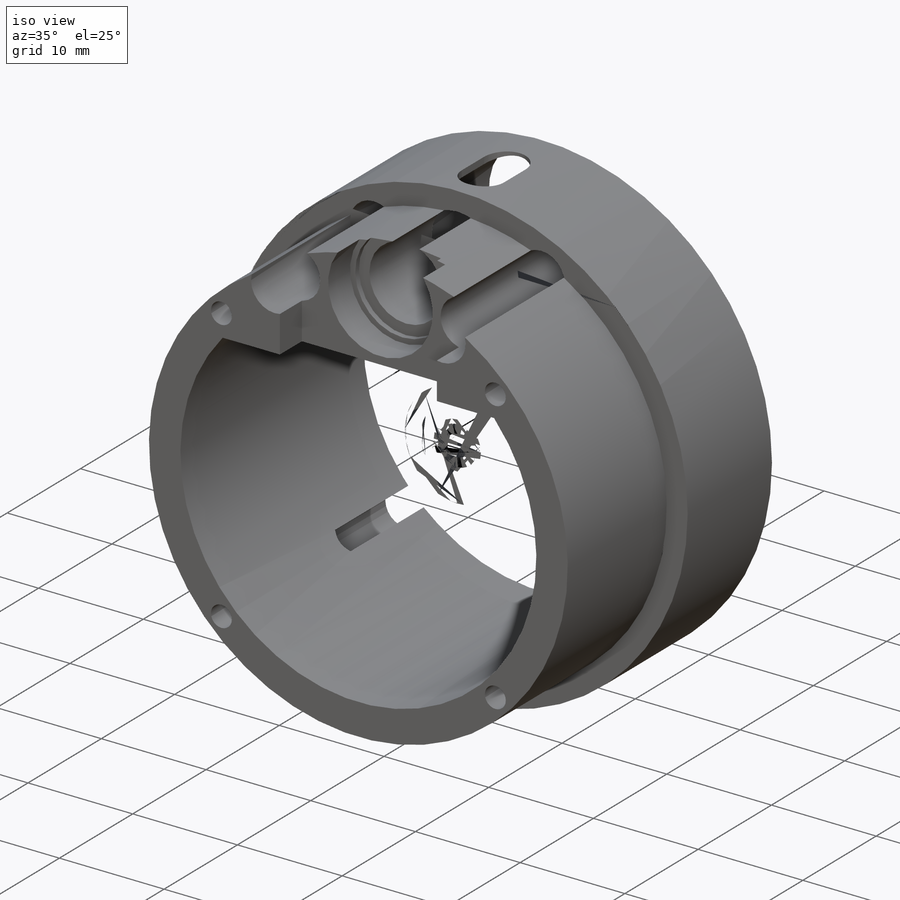
[diagram: iso view]
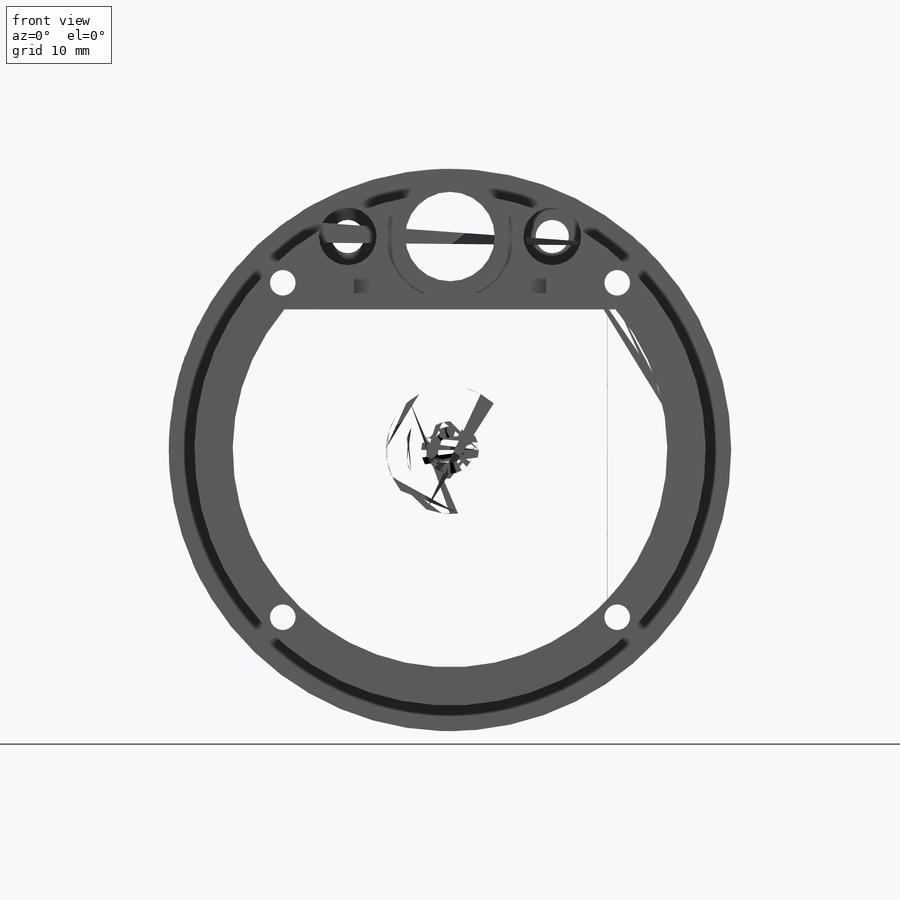
[diagram: front view]
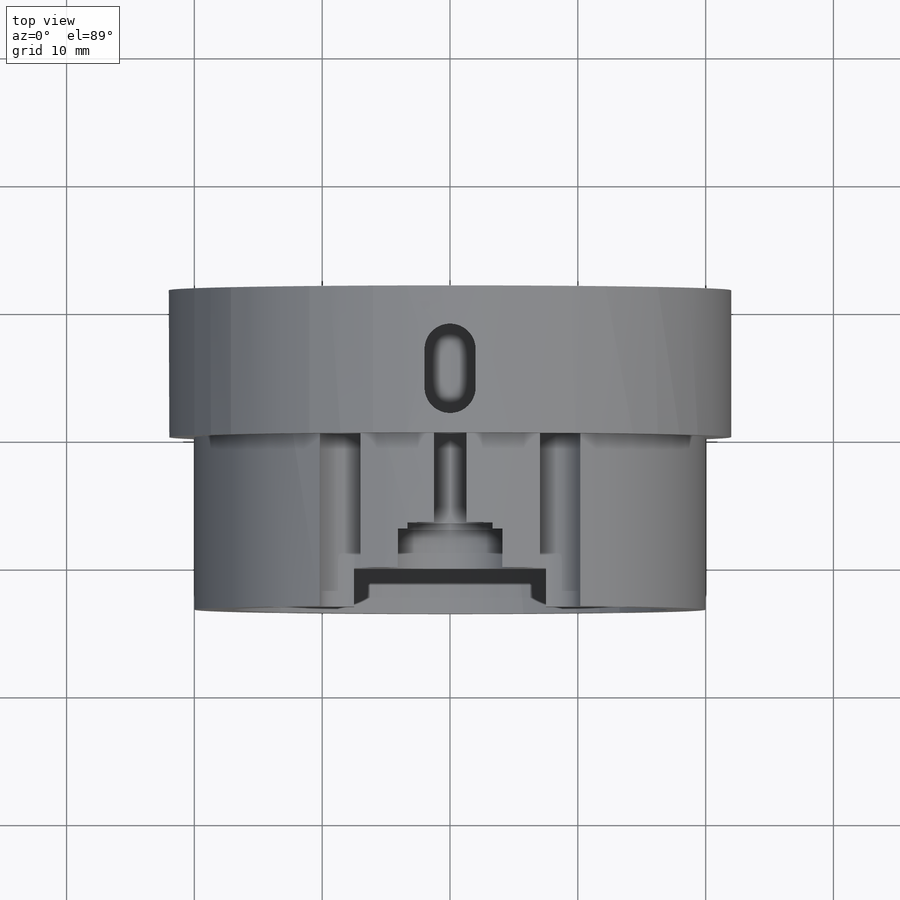
[diagram: top view]
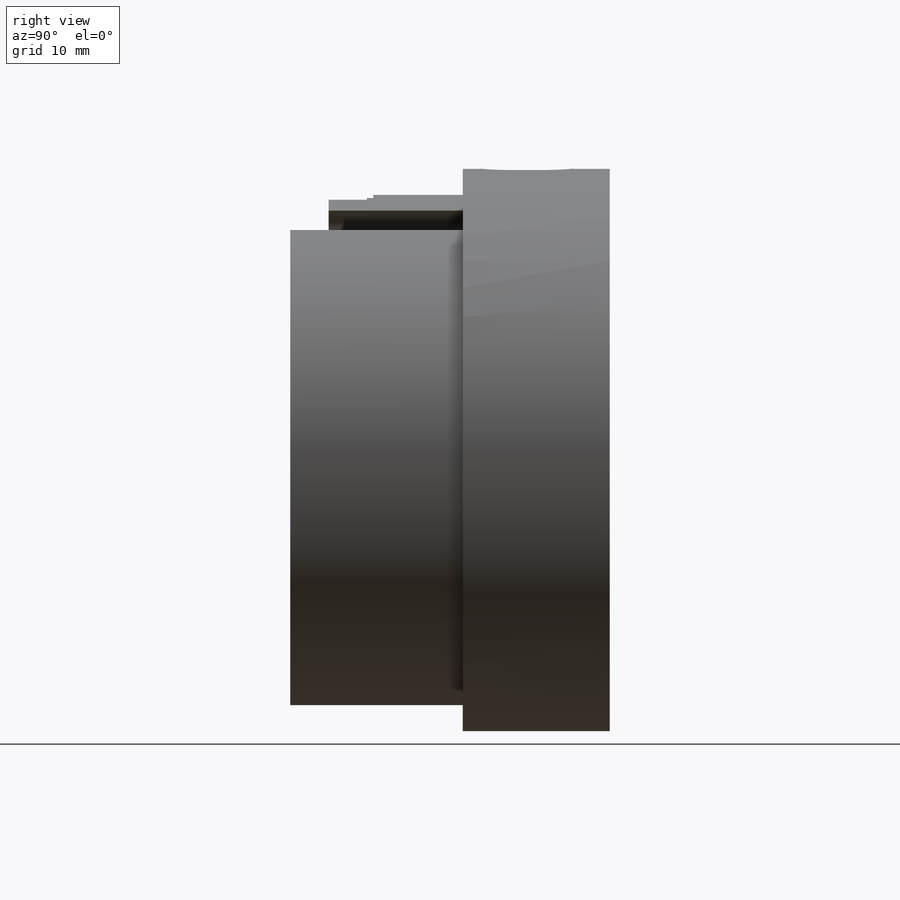
[diagram: right view]
SOLIDWORKS PART (.sldprt)
format: sldprt  version: not decoded by parser v0  size: 666,112 bytes
history: native  units: mm
features: sketch x14, cut_extrude x9, plane x4, extrude x3, material x1, hole x1 (+9 scaffold rows collapsed)
feature tree (41):
  scaffold x9  (default folders/planes/origin — collapsed)
  material  "PMMA"
  plane  "Ebene vorne"
  plane  "Ebene oben"
  plane  "Ebene rechts"
  sketch  "Skizze1"  dims[c1.D1=40.0mm c1.D2=~14.656939mm c1.D3=40.0mm c1.D4=10.0mm c1.D8=~5.68012mm c1.D9=7.0mm c2.D2=3.0mm c2.D3=2.0mm c2.D5=17.0mm c2.D6=11.0mm c2.D7=15.0mm c2.D8=0.5mm c3.D5=3.3mm]
  extrude  "Aufsatz-Linear austragen1"  Depth=1.5mm
  extrude  "Aufsatz-Linear austragen2"  [1 undecoded]
  sketch  "Skizze1<6>"  dims[D1=13.5mm]
  cut_extrude  "Schnitt-Linear austragen2"  [1 undecoded]
  sketch  "Skizze1<8>"  dims[D1=3.0mm]
  cut_extrude  "Schnitt-Linear austragen3"  [1 undecoded]
  sketch  "Skizze1<9>"  dims[D1=3.0mm]
  cut_extrude  "Schnitt-Linear austragen4"  [1 undecoded]
  sketch  "Skizze1<10>"  dims[D1=0.5mm]
  cut_extrude  "Schnitt-Linear austragen5"  [1 undecoded]
  sketch  "Skizze1<11>"
  sketch  "Skizze3"  dims[D1=1.5mm D2=37.0mm]
  cut_extrude  "Schnitt-Linear austragen6"  Depth=8mm
  hole  "Formsenkung für M3 Senkschraube mit Innensechskant1"  Diameter=2mm Depth=15mm
  sketch  "Skizze6"
  sketch  "Skizze5"  dims[hole-wizard template sketch: 55 standard entries collapsed; hole parameters kept: c17.Bohrungstiefe=15.0mm c17.Senkdurchmesser (Oben)=3.7mm c17.D4=~3.666174mm c17.Senkwinkel (Oben)=90.0deg]
  sketch  "Skizze9"  dims[D1=10.0mm]
  extrude  "Aufsatz-Linear austragen5"  Depth=10mm
  sketch  "Skizze12"  dims[D1=2.6mm D2=4.5mm D3=16.0mm]
  cut_extrude  "Schnitt-Linear austragen8"  [1 undecoded]
  cut_extrude  "Schnitt-Linear austragen9"  [1 undecoded]
  sketch  "Skizze12<3>"  dims[D1=6.0mm]
  sketch  "Skizze13"  dims[c1.D1=~7.260826mm c2.D1=65.0deg]
  cut_extrude  "Schnitt-Linear austragen10"  [1 undecoded]
  plane  "Ebene1"
  sketch  "Skizze14"  dims[D1=4.0mm D2=3.0mm D3=5.0mm]
  cut_extrude  "Schnitt-Linear austragen11"  Depth=5mm
decode coverage: 17 of 27 modeling features carry decoded parameters
note: ~ marks probable driven/reference dimensions
note: 8 parameter values undecoded
summary: no parameter record found for 8 features
note: suppression state not decoded; provenance and decode notes live in map.json
